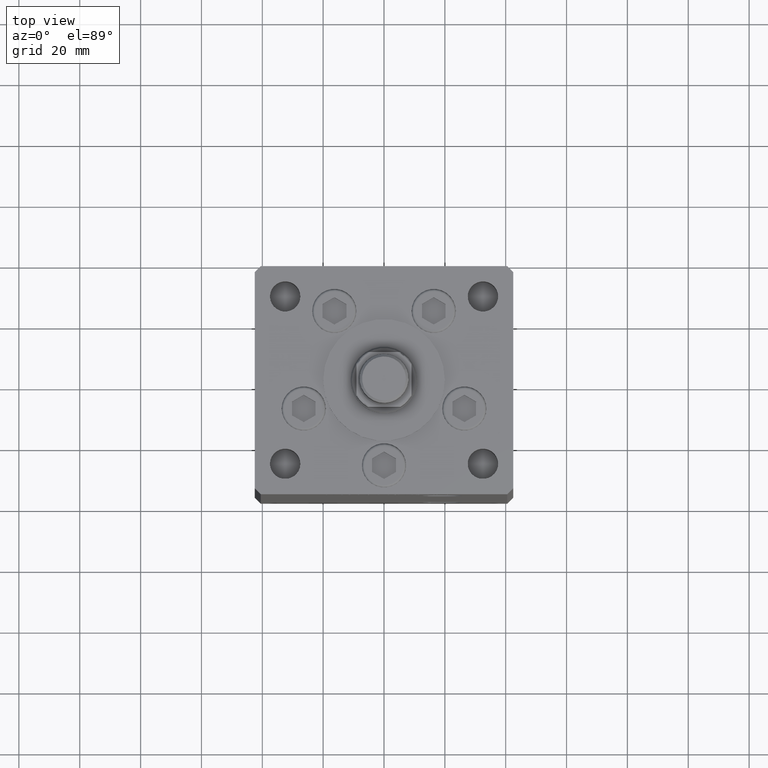
[diagram: clean part render]
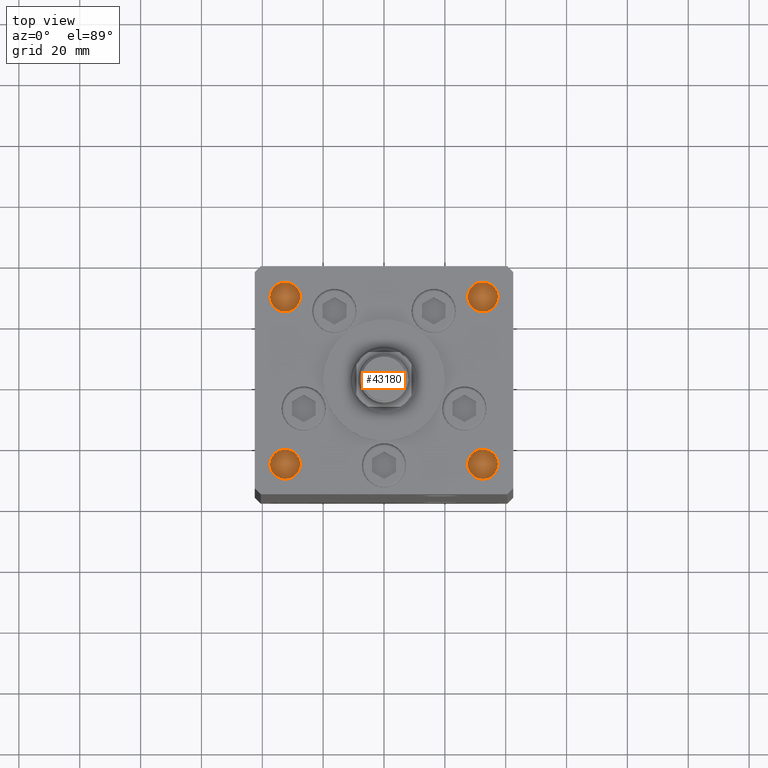
[diagram: same view with one face highlighted and labeled with its STEP entity id]
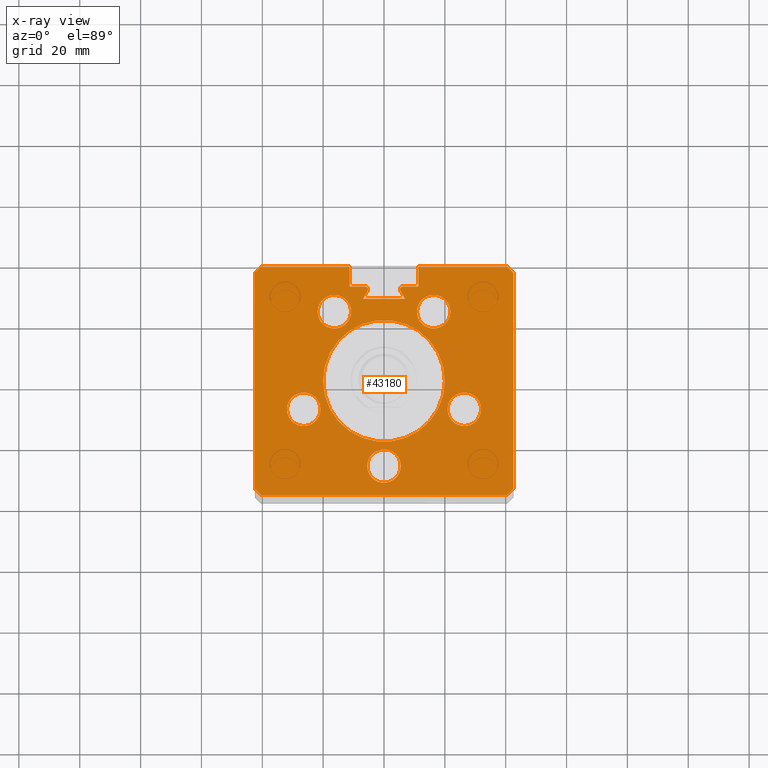
[diagram: x-ray of the same camera — body ghosted, the highlighted face saturated]
A machine part, top view. The second image highlights one B-rep face of the part: STEP entity #43180.
The next image is the same camera in x-ray: the body ghosted, the highlighted face saturated — about 0% of this face is hidden behind the body in this view.
In plain terms, the highlighted planar face has unit normal (0, 0, -1).
Its self-contained STEP definition (entity closure, byte-faithful):
#78 = CIRCLE ( 'NONE', #29842, 5.499999999999998224 ) ;
#180 = EDGE_CURVE ( 'NONE', #18019, #30022, #5608, .T. ) ;
#256 = VERTEX_POINT ( 'NONE', #18264 ) ;
#310 = CARTESIAN_POINT ( 'NONE',  ( 26.39865316429777664, -9.333333333333326820, 148.5000000000000000 ) ) ;
#339 = VERTEX_POINT ( 'NONE', #48593 ) ;
#657 = EDGE_CURVE ( 'NONE', #42057, #44210, #40786, .T. ) ;
#780 = ORIENTED_EDGE ( 'NONE', *, *, #36526, .T. ) ;
#782 = CARTESIAN_POINT ( 'NONE',  ( -42.50000000000000711, 35.50000000000001421, 148.5000000000000000 ) ) ;
#904 = EDGE_CURVE ( 'NONE', #22241, #45704, #30254, .T. ) ;
#1015 = EDGE_LOOP ( 'NONE', ( #28831, #27177 ) ) ;
#1039 = EDGE_LOOP ( 'NONE', ( #28705, #17281 ) ) ;
#1080 = CARTESIAN_POINT ( 'NONE',  ( -42.49999999999998579, -35.50000000000000711, 148.5000000000000000 ) ) ;
#1517 = ORIENTED_EDGE ( 'NONE', *, *, #23491, .T. ) ;
#1519 = EDGE_CURVE ( 'NONE', #27090, #4290, #31953, .T. ) ;
#1666 = ORIENTED_EDGE ( 'NONE', *, *, #32072, .F. ) ;
#1938 = FACE_BOUND ( 'NONE', #9334, .T. ) ;
#1978 = DIRECTION ( 'NONE',  ( 2.931927001650941360E-16, -1.000000000000000000, 0.000000000000000000 ) ) ;
#2022 = VECTOR ( 'NONE', #40207, 1000.000000000000000 ) ;
#2076 = EDGE_CURVE ( 'NONE', #27359, #11104, #7306, .T. ) ;
#2135 = DIRECTION ( 'NONE',  ( 0.7071067811865474617, -0.7071067811865474617, 0.000000000000000000 ) ) ;
#2176 = EDGE_CURVE ( 'NONE', #19297, #48815, #38463, .T. ) ;
#2181 = CARTESIAN_POINT ( 'NONE',  ( -5.249999999999997335, 30.06666666666599141, 148.5000000000000000 ) ) ;
#2196 = FACE_OUTER_BOUND ( 'NONE', #4794, .T. ) ;
#2296 = AXIS2_PLACEMENT_3D ( 'NONE', #6585, #47337, #43335 ) ;
#2459 = DIRECTION ( 'NONE',  ( 0.000000000000000000, 0.000000000000000000, 1.000000000000000000 ) ) ;
#2465 = ORIENTED_EDGE ( 'NONE', *, *, #42887, .T. ) ;
#2629 = CARTESIAN_POINT ( 'NONE',  ( 0.000000000000000000, 0.000000000000000000, 148.5000000000000000 ) ) ;
#2831 = LINE ( 'NONE', #30802, #21347 ) ;
#2962 = CARTESIAN_POINT ( 'NONE',  ( -42.50000000000000711, 35.50000000000001421, 148.5000000000000000 ) ) ;
#2970 = DIRECTION ( 'NONE',  ( 0.000000000000000000, 0.000000000000000000, 1.000000000000000000 ) ) ;
#2972 = CARTESIAN_POINT ( 'NONE',  ( -40.50000000000000000, 37.50000000000000711, 148.5000000000000000 ) ) ;
#3276 = CARTESIAN_POINT ( 'NONE',  ( 0.000000000000000000, 30.99999999999999289, 148.5000000000000000 ) ) ;
#3367 = VERTEX_POINT ( 'NONE', #2972 ) ;
#3515 = EDGE_CURVE ( 'NONE', #44210, #23517, #12009, .T. ) ;
#3522 = DIRECTION ( 'NONE',  ( 1.000000000000000000, 0.000000000000000000, 0.000000000000000000 ) ) ;
#3542 = CARTESIAN_POINT ( 'NONE',  ( 40.49999999999998579, -37.50000000000000711, 148.5000000000000000 ) ) ;
#3573 = VERTEX_POINT ( 'NONE', #47071 ) ;
#3622 = CARTESIAN_POINT ( 'NONE',  ( 11.25000000000000000, 30.99999999999999289, 148.5000000000000000 ) ) ;
#3914 = EDGE_CURVE ( 'NONE', #256, #22297, #14146, .T. ) ;
#3934 = DIRECTION ( 'NONE',  ( 0.000000000000000000, 0.000000000000000000, -1.000000000000000000 ) ) ;
#4028 = CARTESIAN_POINT ( 'NONE',  ( 40.50000000000000000, 37.50000000000000711, 148.5000000000000000 ) ) ;
#4052 = DIRECTION ( 'NONE',  ( 1.000000000000000000, 0.000000000000000000, 0.000000000000000000 ) ) ;
#4096 = VERTEX_POINT ( 'NONE', #32842 ) ;
#4290 = VERTEX_POINT ( 'NONE', #11755 ) ;
#4513 = EDGE_CURVE ( 'NONE', #4096, #37249, #28762, .T. ) ;
#4574 = EDGE_CURVE ( 'NONE', #48815, #46349, #17855, .T. ) ;
#4782 = LINE ( 'NONE', #44483, #26976 ) ;
#4794 = EDGE_LOOP ( 'NONE', ( #780, #41634, #5560, #46669, #32025, #44497, #16234, #43869, #47812, #5298, #15372, #14137, #44353, #41657, #2465, #6647, #1517, #45547, #18678 ) ) ;
#4883 = VERTEX_POINT ( 'NONE', #42299 ) ;
#5298 = ORIENTED_EDGE ( 'NONE', *, *, #3515, .F. ) ;
#5538 = EDGE_CURVE ( 'NONE', #3367, #30939, #4782, .T. ) ;
#5560 = ORIENTED_EDGE ( 'NONE', *, *, #5538, .F. ) ;
#5608 = CIRCLE ( 'NONE', #34507, 5.500000000000000000 ) ;
#5766 = LINE ( 'NONE', #13747, #49253 ) ;
#5896 = EDGE_LOOP ( 'NONE', ( #37425, #44236 ) ) ;
#6585 = CARTESIAN_POINT ( 'NONE',  ( -6.183333333333999704, 30.06666666666599141, 148.5000000000000000 ) ) ;
#6647 = ORIENTED_EDGE ( 'NONE', *, *, #13833, .T. ) ;
#6771 = LINE ( 'NONE', #7822, #26439 ) ;
#7261 = VECTOR ( 'NONE', #34521, 1000.000000000000000 ) ;
#7306 = CIRCLE ( 'NONE', #26867, 20.00000000000000000 ) ;
#7335 = CARTESIAN_POINT ( 'NONE',  ( -5.375042956467944499, 29.59999999999899600, 148.4999999999999716 ) ) ;
#7369 = CARTESIAN_POINT ( 'NONE',  ( -42.49999999999998579, -35.50000000000000711, 148.5000000000000000 ) ) ;
#7822 = CARTESIAN_POINT ( 'NONE',  ( -40.50000000000000000, 37.50000000000000711, 148.5000000000000000 ) ) ;
#7918 = CARTESIAN_POINT ( 'NONE',  ( -6.183333333333999704, 30.06666666666599141, 148.5000000000000000 ) ) ;
#8536 = CARTESIAN_POINT ( 'NONE',  ( 42.49999999999998579, -35.50000000000000711, 148.5000000000000000 ) ) ;
#8592 = CARTESIAN_POINT ( 'NONE',  ( -16.84845819336021577, 9.727461873366683776, 148.5000000000000000 ) ) ;
#8777 = EDGE_CURVE ( 'NONE', #15219, #39270, #48233, .T. ) ;
#8840 = AXIS2_PLACEMENT_3D ( 'NONE', #46688, #26408, #26924 ) ;
#9334 = EDGE_LOOP ( 'NONE', ( #18914, #1666 ) ) ;
#9737 = CARTESIAN_POINT ( 'NONE',  ( -16.32291334290543361, 22.75000000000000000, 148.5000000000000000 ) ) ;
#10193 = AXIS2_PLACEMENT_3D ( 'NONE', #20636, #41419, #25409 ) ;
#10697 = FACE_BOUND ( 'NONE', #5896, .T. ) ;
#11104 = VERTEX_POINT ( 'NONE', #39497 ) ;
#11211 = AXIS2_PLACEMENT_3D ( 'NONE', #310, #45564, #40521 ) ;
#11468 = VECTOR ( 'NONE', #34667, 1000.000000000000000 ) ;
#11747 = DIRECTION ( 'NONE',  ( 1.000000000000000000, 0.000000000000000000, 0.000000000000000000 ) ) ;
#11755 = CARTESIAN_POINT ( 'NONE',  ( -31.89865316429777664, -9.333333333333333925, 148.5000000000000000 ) ) ;
#11785 = DIRECTION ( 'NONE',  ( 0.000000000000000000, 0.000000000000000000, 1.000000000000000000 ) ) ;
#11862 = DIRECTION ( 'NONE',  ( 0.000000000000000000, 0.000000000000000000, 1.000000000000000000 ) ) ;
#12009 = LINE ( 'NONE', #4028, #52456 ) ;
#12080 = CARTESIAN_POINT ( 'NONE',  ( 5.500000000000003553, -28.00000000000000000, 148.5000000000000000 ) ) ;
#12199 = VECTOR ( 'NONE', #12336, 1000.000000000000114 ) ;
#12336 = DIRECTION ( 'NONE',  ( 0.5000000000000003331, -0.8660254037844384856, 0.000000000000000000 ) ) ;
#12403 = CARTESIAN_POINT ( 'NONE',  ( 6.876153656360465938, 26.99999999999986855, 148.5000000000000000 ) ) ;
#12447 = CARTESIAN_POINT ( 'NONE',  ( -6.183333333333999704, 30.99999999999999289, 148.5000000000000000 ) ) ;
#13229 = CARTESIAN_POINT ( 'NONE',  ( 6.183333333333999704, 30.99999999999999289, 148.5000000000000000 ) ) ;
#13601 = EDGE_CURVE ( 'NONE', #39270, #20709, #45823, .T. ) ;
#13747 = CARTESIAN_POINT ( 'NONE',  ( 0.000000000000000000, 26.99999999999986855, 148.5000000000000000 ) ) ;
#13755 = VECTOR ( 'NONE', #43490, 1000.000000000000000 ) ;
#13833 = EDGE_CURVE ( 'NONE', #27043, #23586, #5766, .T. ) ;
#14137 = ORIENTED_EDGE ( 'NONE', *, *, #41901, .T. ) ;
#14146 = CIRCLE ( 'NONE', #51613, 5.499999999999998224 ) ;
#14441 = DIRECTION ( 'NONE',  ( 1.000000000000000000, 0.000000000000000000, 0.000000000000000000 ) ) ;
#14442 = CARTESIAN_POINT ( 'NONE',  ( 26.39865316429777664, -9.333333333333326820, 148.5000000000000000 ) ) ;
#14546 = CARTESIAN_POINT ( 'NONE',  ( 3.429011037612589276E-15, -28.00000000000000000, 148.5000000000000000 ) ) ;
#15187 = DIRECTION ( 'NONE',  ( 0.000000000000000000, 1.000000000000000000, 0.000000000000000000 ) ) ;
#15219 = VERTEX_POINT ( 'NONE', #12447 ) ;
#15372 = ORIENTED_EDGE ( 'NONE', *, *, #657, .F. ) ;
#15927 = DIRECTION ( 'NONE',  ( 1.000000000000000000, 0.000000000000000000, 0.000000000000000000 ) ) ;
#16038 = CARTESIAN_POINT ( 'NONE',  ( -26.39865316429777664, -9.333333333333333925, 148.5000000000000000 ) ) ;
#16071 = CARTESIAN_POINT ( 'NONE',  ( -11.25000000000000000, 37.50000000000000000, 148.5000000000000000 ) ) ;
#16234 = ORIENTED_EDGE ( 'NONE', *, *, #22071, .T. ) ;
#16261 = DIRECTION ( 'NONE',  ( 0.7071067811865500152, -0.7071067811865451302, 0.000000000000000000 ) ) ;
#16923 = CARTESIAN_POINT ( 'NONE',  ( -10.82291334290543539, 22.75000000000000000, 148.5000000000000000 ) ) ;
#17075 = EDGE_CURVE ( 'NONE', #11104, #27359, #17842, .T. ) ;
#17281 = ORIENTED_EDGE ( 'NONE', *, *, #17075, .F. ) ;
#17715 = VERTEX_POINT ( 'NONE', #49027 ) ;
#17842 = CIRCLE ( 'NONE', #10193, 20.00000000000000000 ) ;
#17855 = LINE ( 'NONE', #1080, #39736 ) ;
#18019 = VERTEX_POINT ( 'NONE', #16923 ) ;
#18184 = FACE_BOUND ( 'NONE', #1039, .T. ) ;
#18264 = CARTESIAN_POINT ( 'NONE',  ( 21.82291334290542650, 22.75000000000000355, 148.5000000000000000 ) ) ;
#18452 = VECTOR ( 'NONE', #37026, 1000.000000000000114 ) ;
#18678 = ORIENTED_EDGE ( 'NONE', *, *, #8777, .F. ) ;
#18914 = ORIENTED_EDGE ( 'NONE', *, *, #180, .F. ) ;
#19297 = VERTEX_POINT ( 'NONE', #782 ) ;
#19805 = DIRECTION ( 'NONE',  ( -0.7071067811865500152, -0.7071067811865451302, 0.000000000000000000 ) ) ;
#19849 = DIRECTION ( 'NONE',  ( 1.000000000000000000, 0.000000000000000000, 0.000000000000000000 ) ) ;
#20066 = CARTESIAN_POINT ( 'NONE',  ( -20.00000000000000000, 0.000000000000000000, 148.5000000000000000 ) ) ;
#20164 = DIRECTION ( 'NONE',  ( 1.000000000000000000, 0.000000000000000000, 0.000000000000000000 ) ) ;
#20223 = CARTESIAN_POINT ( 'NONE',  ( 40.50000000000000000, 37.50000000000000711, 148.5000000000000000 ) ) ;
#20636 = CARTESIAN_POINT ( 'NONE',  ( 0.000000000000000000, 0.000000000000000000, 148.5000000000000000 ) ) ;
#20684 = EDGE_CURVE ( 'NONE', #40430, #3573, #48555, .T. ) ;
#20709 = VERTEX_POINT ( 'NONE', #7335 ) ;
#20784 = EDGE_CURVE ( 'NONE', #22297, #256, #78, .T. ) ;
#21347 = VECTOR ( 'NONE', #22793, 1000.000000000000000 ) ;
#21555 = EDGE_CURVE ( 'NONE', #4883, #30939, #27691, .T. ) ;
#22071 = EDGE_CURVE ( 'NONE', #46349, #37249, #2831, .T. ) ;
#22241 = VERTEX_POINT ( 'NONE', #3622 ) ;
#22297 = VERTEX_POINT ( 'NONE', #50716 ) ;
#22480 = CARTESIAN_POINT ( 'NONE',  ( 16.32291334290542650, 22.75000000000000355, 148.5000000000000000 ) ) ;
#22678 = FACE_BOUND ( 'NONE', #1015, .T. ) ;
#22793 = DIRECTION ( 'NONE',  ( 1.000000000000000000, 0.000000000000000000, 0.000000000000000000 ) ) ;
#23061 = VECTOR ( 'NONE', #15187, 1000.000000000000000 ) ;
#23198 = PLANE ( 'NONE',  #8840 ) ;
#23305 = DIRECTION ( 'NONE',  ( 0.000000000000000000, 0.000000000000000000, 1.000000000000000000 ) ) ;
#23409 = EDGE_LOOP ( 'NONE', ( #41958, #25357 ) ) ;
#23491 = EDGE_CURVE ( 'NONE', #23586, #20709, #23775, .T. ) ;
#23517 = VERTEX_POINT ( 'NONE', #28817 ) ;
#23586 = VERTEX_POINT ( 'NONE', #29078 ) ;
#23617 = CARTESIAN_POINT ( 'NONE',  ( 11.24999999999999289, 37.50000000000000000, 148.5000000000000000 ) ) ;
#23775 = LINE ( 'NONE', #8592, #45340 ) ;
#25357 = ORIENTED_EDGE ( 'NONE', *, *, #20784, .F. ) ;
#25409 = DIRECTION ( 'NONE',  ( 1.000000000000000000, 0.000000000000000000, 0.000000000000000000 ) ) ;
#25591 = LINE ( 'NONE', #41876, #11468 ) ;
#25959 = DIRECTION ( 'NONE',  ( 0.000000000000000000, 0.000000000000000000, 1.000000000000000000 ) ) ;
#26407 = CARTESIAN_POINT ( 'NONE',  ( 6.183333333333999704, 30.06666666666599141, 148.5000000000000000 ) ) ;
#26408 = DIRECTION ( 'NONE',  ( 0.000000000000000000, 0.000000000000000000, -1.000000000000000000 ) ) ;
#26439 = VECTOR ( 'NONE', #19805, 1000.000000000000114 ) ;
#26458 = DIRECTION ( 'NONE',  ( 1.000000000000000000, 0.000000000000000000, 0.000000000000000000 ) ) ;
#26483 = VERTEX_POINT ( 'NONE', #27679 ) ;
#26697 = CIRCLE ( 'NONE', #36897, 5.499999999999998224 ) ;
#26867 = AXIS2_PLACEMENT_3D ( 'NONE', #2629, #43367, #51365 ) ;
#26924 = DIRECTION ( 'NONE',  ( -1.000000000000000000, 0.000000000000000000, -0.000000000000000000 ) ) ;
#26976 = VECTOR ( 'NONE', #40484, 1000.000000000000000 ) ;
#27043 = VERTEX_POINT ( 'NONE', #12403 ) ;
#27090 = VERTEX_POINT ( 'NONE', #34497 ) ;
#27169 = CARTESIAN_POINT ( 'NONE',  ( -11.25000000000000000, 0.000000000000000000, 148.5000000000000000 ) ) ;
#27177 = ORIENTED_EDGE ( 'NONE', *, *, #39401, .F. ) ;
#27359 = VERTEX_POINT ( 'NONE', #20066 ) ;
#27679 = CARTESIAN_POINT ( 'NONE',  ( 5.375042956467944499, 29.59999999999899245, 148.5000000000000000 ) ) ;
#27691 = LINE ( 'NONE', #27169, #23061 ) ;
#28705 = ORIENTED_EDGE ( 'NONE', *, *, #2076, .F. ) ;
#28762 = LINE ( 'NONE', #8536, #18452 ) ;
#28817 = CARTESIAN_POINT ( 'NONE',  ( 42.50000000000000711, 35.50000000000001421, 148.5000000000000000 ) ) ;
#28831 = ORIENTED_EDGE ( 'NONE', *, *, #1519, .F. ) ;
#28868 = DIRECTION ( 'NONE',  ( 1.000000000000000000, 0.000000000000000000, 0.000000000000000000 ) ) ;
#29078 = CARTESIAN_POINT ( 'NONE',  ( -6.876153656360465938, 26.99999999999986855, 148.5000000000000000 ) ) ;
#29304 = DIRECTION ( 'NONE',  ( 0.000000000000000000, 0.000000000000000000, 1.000000000000000000 ) ) ;
#29386 = VECTOR ( 'NONE', #3522, 1000.000000000000000 ) ;
#29842 = AXIS2_PLACEMENT_3D ( 'NONE', #49141, #11862, #28868 ) ;
#30022 = VERTEX_POINT ( 'NONE', #47782 ) ;
#30254 = LINE ( 'NONE', #33998, #7261 ) ;
#30802 = CARTESIAN_POINT ( 'NONE',  ( -40.49999999999998579, -37.50000000000000711, 148.5000000000000000 ) ) ;
#30869 = EDGE_CURVE ( 'NONE', #3367, #19297, #6771, .T. ) ;
#30939 = VERTEX_POINT ( 'NONE', #16071 ) ;
#31153 = VECTOR ( 'NONE', #1978, 1000.000000000000000 ) ;
#31953 = CIRCLE ( 'NONE', #48121, 5.499999999999998224 ) ;
#32025 = ORIENTED_EDGE ( 'NONE', *, *, #2176, .T. ) ;
#32072 = EDGE_CURVE ( 'NONE', #30022, #18019, #46933, .T. ) ;
#32126 = EDGE_CURVE ( 'NONE', #339, #17715, #52052, .T. ) ;
#32368 = EDGE_LOOP ( 'NONE', ( #43943, #42629 ) ) ;
#32548 = AXIS2_PLACEMENT_3D ( 'NONE', #35450, #2970, #11747 ) ;
#32781 = EDGE_CURVE ( 'NONE', #3573, #40430, #50351, .T. ) ;
#32842 = CARTESIAN_POINT ( 'NONE',  ( 42.49999999999998579, -35.50000000000000711, 148.5000000000000000 ) ) ;
#33458 = DIRECTION ( 'NONE',  ( 1.000000000000000000, 0.000000000000000000, 0.000000000000000000 ) ) ;
#33998 = CARTESIAN_POINT ( 'NONE',  ( 0.000000000000000000, 30.99999999999999289, 148.5000000000000000 ) ) ;
#34115 = AXIS2_PLACEMENT_3D ( 'NONE', #14546, #23305, #19849 ) ;
#34397 = EDGE_CURVE ( 'NONE', #26483, #45704, #43572, .T. ) ;
#34497 = CARTESIAN_POINT ( 'NONE',  ( -20.89865316429778019, -9.333333333333333925, 148.5000000000000000 ) ) ;
#34507 = AXIS2_PLACEMENT_3D ( 'NONE', #9737, #25959, #33458 ) ;
#34521 = DIRECTION ( 'NONE',  ( -1.000000000000000000, 0.000000000000000000, 0.000000000000000000 ) ) ;
#34667 = DIRECTION ( 'NONE',  ( -2.931927001650941360E-16, -1.000000000000000000, 0.000000000000000000 ) ) ;
#34689 = FACE_BOUND ( 'NONE', #32368, .T. ) ;
#35002 = DIRECTION ( 'NONE',  ( 0.000000000000000000, 0.000000000000000000, 1.000000000000000000 ) ) ;
#35450 = CARTESIAN_POINT ( 'NONE',  ( -26.39865316429777664, -9.333333333333333925, 148.5000000000000000 ) ) ;
#35942 = CARTESIAN_POINT ( 'NONE',  ( 11.25000000000000000, 0.000000000000000000, 148.5000000000000000 ) ) ;
#36306 = DIRECTION ( 'NONE',  ( 0.5000000000000003331, 0.8660254037844384856, 0.000000000000000000 ) ) ;
#36526 = EDGE_CURVE ( 'NONE', #15219, #4883, #39757, .T. ) ;
#36789 = CIRCLE ( 'NONE', #32548, 5.499999999999998224 ) ;
#36897 = AXIS2_PLACEMENT_3D ( 'NONE', #14442, #2459, #38684 ) ;
#37026 = DIRECTION ( 'NONE',  ( -0.7071067811865474617, -0.7071067811865474617, 0.000000000000000000 ) ) ;
#37249 = VERTEX_POINT ( 'NONE', #3542 ) ;
#37425 = ORIENTED_EDGE ( 'NONE', *, *, #43157, .F. ) ;
#37624 = DIRECTION ( 'NONE',  ( 0.000000000000000000, 0.000000000000000000, -1.000000000000000000 ) ) ;
#38192 = AXIS2_PLACEMENT_3D ( 'NONE', #7918, #3934, #20164 ) ;
#38463 = LINE ( 'NONE', #2962, #31153 ) ;
#38684 = DIRECTION ( 'NONE',  ( 1.000000000000000000, 0.000000000000000000, 0.000000000000000000 ) ) ;
#39270 = VERTEX_POINT ( 'NONE', #2181 ) ;
#39401 = EDGE_CURVE ( 'NONE', #4290, #27090, #36789, .T. ) ;
#39497 = CARTESIAN_POINT ( 'NONE',  ( 20.00000000000000000, 2.449293598294706513E-15, 148.5000000000000000 ) ) ;
#39648 = CARTESIAN_POINT ( 'NONE',  ( 3.429011037612589276E-15, -28.00000000000000000, 148.5000000000000000 ) ) ;
#39736 = VECTOR ( 'NONE', #2135, 1000.000000000000114 ) ;
#39757 = LINE ( 'NONE', #3276, #13755 ) ;
#40006 = CARTESIAN_POINT ( 'NONE',  ( -11.25000000000000000, 37.50000000000000000, 148.5000000000000000 ) ) ;
#40207 = DIRECTION ( 'NONE',  ( -0.000000000000000000, -1.000000000000000000, 0.000000000000000000 ) ) ;
#40430 = VERTEX_POINT ( 'NONE', #12080 ) ;
#40484 = DIRECTION ( 'NONE',  ( 1.000000000000000000, 0.000000000000000000, 0.000000000000000000 ) ) ;
#40521 = DIRECTION ( 'NONE',  ( 1.000000000000000000, 0.000000000000000000, 0.000000000000000000 ) ) ;
#40786 = LINE ( 'NONE', #40006, #29386 ) ;
#41419 = DIRECTION ( 'NONE',  ( -0.000000000000000000, 0.000000000000000000, 1.000000000000000000 ) ) ;
#41634 = ORIENTED_EDGE ( 'NONE', *, *, #21555, .T. ) ;
#41657 = ORIENTED_EDGE ( 'NONE', *, *, #34397, .F. ) ;
#41867 = AXIS2_PLACEMENT_3D ( 'NONE', #39648, #47652, #15927 ) ;
#41876 = CARTESIAN_POINT ( 'NONE',  ( 42.50000000000000711, 35.50000000000001421, 148.5000000000000000 ) ) ;
#41901 = EDGE_CURVE ( 'NONE', #42057, #22241, #47947, .T. ) ;
#41958 = ORIENTED_EDGE ( 'NONE', *, *, #3914, .F. ) ;
#42057 = VERTEX_POINT ( 'NONE', #23617 ) ;
#42299 = CARTESIAN_POINT ( 'NONE',  ( -11.25000000000000000, 30.99999999999999289, 148.5000000000000000 ) ) ;
#42629 = ORIENTED_EDGE ( 'NONE', *, *, #32781, .F. ) ;
#42887 = EDGE_CURVE ( 'NONE', #26483, #27043, #52303, .T. ) ;
#43157 = EDGE_CURVE ( 'NONE', #17715, #339, #26697, .T. ) ;
#43180 = ADVANCED_FACE ( 'NONE', ( #22678, #34689, #10697, #51454, #1938, #2196, #18184 ), #23198, .F. ) ;
#43335 = DIRECTION ( 'NONE',  ( 1.000000000000000000, 0.000000000000000000, 0.000000000000000000 ) ) ;
#43367 = DIRECTION ( 'NONE',  ( -0.000000000000000000, 0.000000000000000000, 1.000000000000000000 ) ) ;
#43490 = DIRECTION ( 'NONE',  ( -1.000000000000000000, 0.000000000000000000, 0.000000000000000000 ) ) ;
#43572 = CIRCLE ( 'NONE', #50386, 0.9333333333340015914 ) ;
#43869 = ORIENTED_EDGE ( 'NONE', *, *, #4513, .F. ) ;
#43943 = ORIENTED_EDGE ( 'NONE', *, *, #20684, .F. ) ;
#44210 = VERTEX_POINT ( 'NONE', #20223 ) ;
#44236 = ORIENTED_EDGE ( 'NONE', *, *, #32126, .F. ) ;
#44279 = DIRECTION ( 'NONE',  ( 1.000000000000000000, 0.000000000000000000, 0.000000000000000000 ) ) ;
#44353 = ORIENTED_EDGE ( 'NONE', *, *, #904, .T. ) ;
#44483 = CARTESIAN_POINT ( 'NONE',  ( -11.25000000000000000, 37.50000000000000000, 148.5000000000000000 ) ) ;
#44497 = ORIENTED_EDGE ( 'NONE', *, *, #4574, .T. ) ;
#45340 = VECTOR ( 'NONE', #36306, 1000.000000000000114 ) ;
#45547 = ORIENTED_EDGE ( 'NONE', *, *, #13601, .F. ) ;
#45564 = DIRECTION ( 'NONE',  ( 0.000000000000000000, 0.000000000000000000, 1.000000000000000000 ) ) ;
#45704 = VERTEX_POINT ( 'NONE', #13229 ) ;
#45823 = CIRCLE ( 'NONE', #38192, 0.9333333333340015914 ) ;
#45917 = EDGE_CURVE ( 'NONE', #23517, #4096, #25591, .T. ) ;
#46349 = VERTEX_POINT ( 'NONE', #51119 ) ;
#46669 = ORIENTED_EDGE ( 'NONE', *, *, #30869, .T. ) ;
#46688 = CARTESIAN_POINT ( 'NONE',  ( 0.000000000000000000, 0.000000000000000000, 148.5000000000000000 ) ) ;
#46933 = CIRCLE ( 'NONE', #50314, 5.500000000000000000 ) ;
#47071 = CARTESIAN_POINT ( 'NONE',  ( -5.499999999999996447, -28.00000000000000000, 148.5000000000000000 ) ) ;
#47337 = DIRECTION ( 'NONE',  ( 0.000000000000000000, 0.000000000000000000, -1.000000000000000000 ) ) ;
#47652 = DIRECTION ( 'NONE',  ( 0.000000000000000000, 0.000000000000000000, 1.000000000000000000 ) ) ;
#47782 = CARTESIAN_POINT ( 'NONE',  ( -21.82291334290543361, 22.75000000000000000, 148.5000000000000000 ) ) ;
#47812 = ORIENTED_EDGE ( 'NONE', *, *, #45917, .F. ) ;
#47947 = LINE ( 'NONE', #35942, #2022 ) ;
#48051 = CARTESIAN_POINT ( 'NONE',  ( 16.84845819336021577, 9.727461873366683776, 148.5000000000000000 ) ) ;
#48121 = AXIS2_PLACEMENT_3D ( 'NONE', #16038, #11785, #44279 ) ;
#48233 = CIRCLE ( 'NONE', #2296, 0.9333333333340015914 ) ;
#48555 = CIRCLE ( 'NONE', #34115, 5.500000000000000000 ) ;
#48593 = CARTESIAN_POINT ( 'NONE',  ( 20.89865316429778019, -9.333333333333326820, 148.5000000000000000 ) ) ;
#48815 = VERTEX_POINT ( 'NONE', #7369 ) ;
#49027 = CARTESIAN_POINT ( 'NONE',  ( 31.89865316429777664, -9.333333333333326820, 148.5000000000000000 ) ) ;
#49141 = CARTESIAN_POINT ( 'NONE',  ( 16.32291334290542650, 22.75000000000000355, 148.5000000000000000 ) ) ;
#49253 = VECTOR ( 'NONE', #51291, 1000.000000000000000 ) ;
#49832 = CARTESIAN_POINT ( 'NONE',  ( -16.32291334290543361, 22.75000000000000000, 148.5000000000000000 ) ) ;
#50314 = AXIS2_PLACEMENT_3D ( 'NONE', #49832, #29304, #4052 ) ;
#50351 = CIRCLE ( 'NONE', #41867, 5.500000000000000000 ) ;
#50386 = AXIS2_PLACEMENT_3D ( 'NONE', #26407, #37624, #14441 ) ;
#50716 = CARTESIAN_POINT ( 'NONE',  ( 10.82291334290543183, 22.75000000000000355, 148.5000000000000000 ) ) ;
#51119 = CARTESIAN_POINT ( 'NONE',  ( -40.49999999999998579, -37.50000000000000711, 148.5000000000000000 ) ) ;
#51291 = DIRECTION ( 'NONE',  ( -1.000000000000000000, 0.000000000000000000, 0.000000000000000000 ) ) ;
#51365 = DIRECTION ( 'NONE',  ( 1.000000000000000000, 0.000000000000000000, 0.000000000000000000 ) ) ;
#51454 = FACE_BOUND ( 'NONE', #23409, .T. ) ;
#51613 = AXIS2_PLACEMENT_3D ( 'NONE', #22480, #35002, #26458 ) ;
#52052 = CIRCLE ( 'NONE', #11211, 5.499999999999998224 ) ;
#52303 = LINE ( 'NONE', #48051, #12199 ) ;
#52456 = VECTOR ( 'NONE', #16261, 1000.000000000000114 ) ;